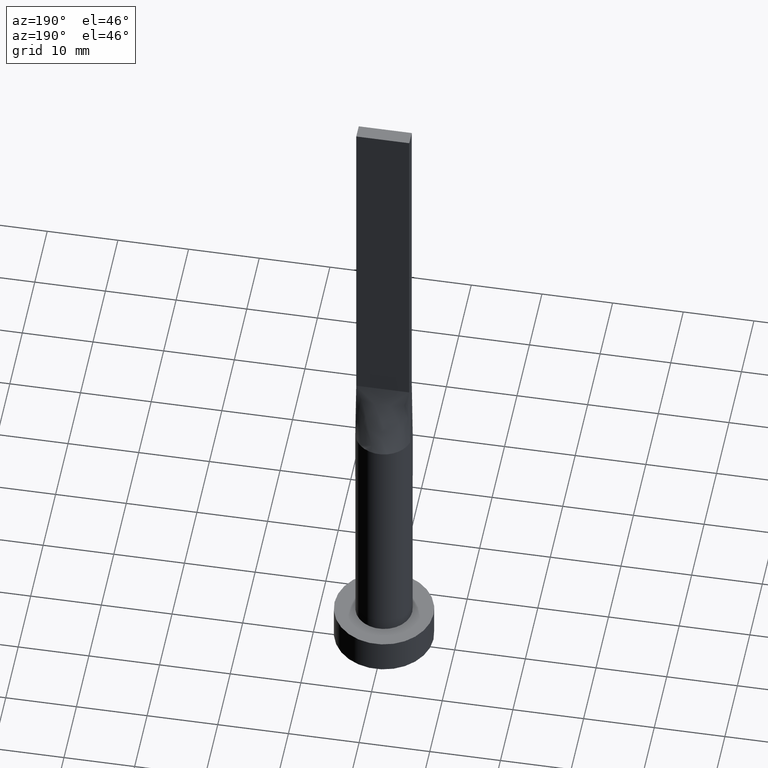
[diagram: clean part render]
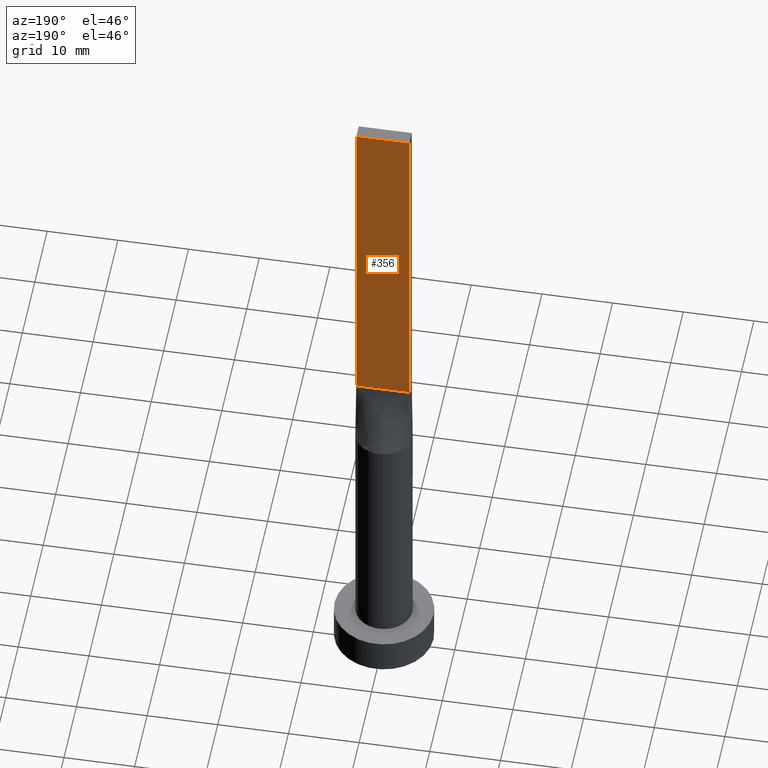
[diagram: same view with one face highlighted and labeled with its STEP entity id]
A machine part, auxiliary view. The second image highlights one B-rep face of the part: STEP entity #356.
In plain terms, the highlighted planar face has unit normal (0, -1, 0).
Its self-contained STEP definition (entity closure, byte-faithful):
#3 = DIRECTION ( 'NONE',  ( 0.000000000000000000, -0.000000000000000000, -1.000000000000000000 ) ) ;
#8 = VERTEX_POINT ( 'NONE', #10 ) ;
#10 = CARTESIAN_POINT ( 'NONE',  ( 3.750000000000000000, 1.000000000000000000, 50.00000000000000000 ) ) ;
#16 = CARTESIAN_POINT ( 'NONE',  ( 3.750000000000000000, 1.000000000000000000, 100.0000000000000000 ) ) ;
#46 = EDGE_CURVE ( 'NONE', #8, #281, #371, .T. ) ;
#50 = PLANE ( 'NONE',  #387 ) ;
#52 = EDGE_LOOP ( 'NONE', ( #412, #122, #64, #108 ) ) ;
#64 = ORIENTED_EDGE ( 'NONE', *, *, #105, .F. ) ;
#79 = DIRECTION ( 'NONE',  ( -0.000000000000000000, -0.000000000000000000, -1.000000000000000000 ) ) ;
#93 = VECTOR ( 'NONE', #146, 1000.000000000000000 ) ;
#105 = EDGE_CURVE ( 'NONE', #358, #527, #512, .T. ) ;
#108 = ORIENTED_EDGE ( 'NONE', *, *, #145, .T. ) ;
#114 = LINE ( 'NONE', #554, #411 ) ;
#122 = ORIENTED_EDGE ( 'NONE', *, *, #137, .F. ) ;
#137 = EDGE_CURVE ( 'NONE', #527, #281, #114, .T. ) ;
#145 = EDGE_CURVE ( 'NONE', #358, #8, #437, .T. ) ;
#146 = DIRECTION ( 'NONE',  ( -1.000000000000000000, -0.000000000000000000, -0.000000000000000000 ) ) ;
#163 = CARTESIAN_POINT ( 'NONE',  ( 3.750000000000000000, 1.000000000000000000, 100.0000000000000000 ) ) ;
#182 = CARTESIAN_POINT ( 'NONE',  ( 3.750000000000000000, 1.000000000000000000, 100.0000000000000000 ) ) ;
#229 = DIRECTION ( 'NONE',  ( 0.000000000000000000, -1.000000000000000000, 0.000000000000000000 ) ) ;
#275 = FACE_OUTER_BOUND ( 'NONE', #52, .T. ) ;
#277 = CARTESIAN_POINT ( 'NONE',  ( -3.750000000000000000, 1.000000000000000000, 50.00000000000000000 ) ) ;
#281 = VERTEX_POINT ( 'NONE', #277 ) ;
#300 = VECTOR ( 'NONE', #79, 1000.000000000000000 ) ;
#339 = VECTOR ( 'NONE', #516, 1000.000000000000000 ) ;
#342 = DIRECTION ( 'NONE',  ( -0.000000000000000000, -0.000000000000000000, -1.000000000000000000 ) ) ;
#356 = ADVANCED_FACE ( 'NONE', ( #275 ), #50, .F. ) ;
#358 = VERTEX_POINT ( 'NONE', #182 ) ;
#371 = LINE ( 'NONE', #539, #93 ) ;
#387 = AXIS2_PLACEMENT_3D ( 'NONE', #458, #229, #3 ) ;
#411 = VECTOR ( 'NONE', #342, 1000.000000000000000 ) ;
#412 = ORIENTED_EDGE ( 'NONE', *, *, #46, .T. ) ;
#437 = LINE ( 'NONE', #16, #300 ) ;
#458 = CARTESIAN_POINT ( 'NONE',  ( 3.750000000000000000, 1.000000000000000000, 100.0000000000000000 ) ) ;
#480 = CARTESIAN_POINT ( 'NONE',  ( -3.750000000000000000, 1.000000000000000000, 100.0000000000000000 ) ) ;
#512 = LINE ( 'NONE', #163, #339 ) ;
#516 = DIRECTION ( 'NONE',  ( -1.000000000000000000, 0.000000000000000000, 0.000000000000000000 ) ) ;
#527 = VERTEX_POINT ( 'NONE', #480 ) ;
#539 = CARTESIAN_POINT ( 'NONE',  ( -3.750000000000000000, 1.000000000000000000, 50.00000000000000000 ) ) ;
#554 = CARTESIAN_POINT ( 'NONE',  ( -3.750000000000000000, 1.000000000000000000, 100.0000000000000000 ) ) ;